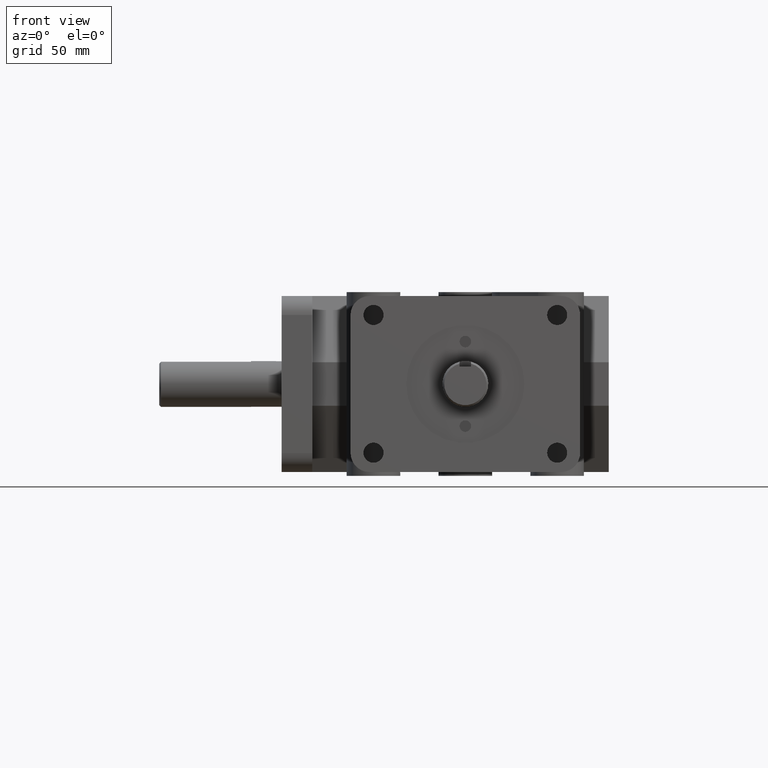
[diagram: clean part render]
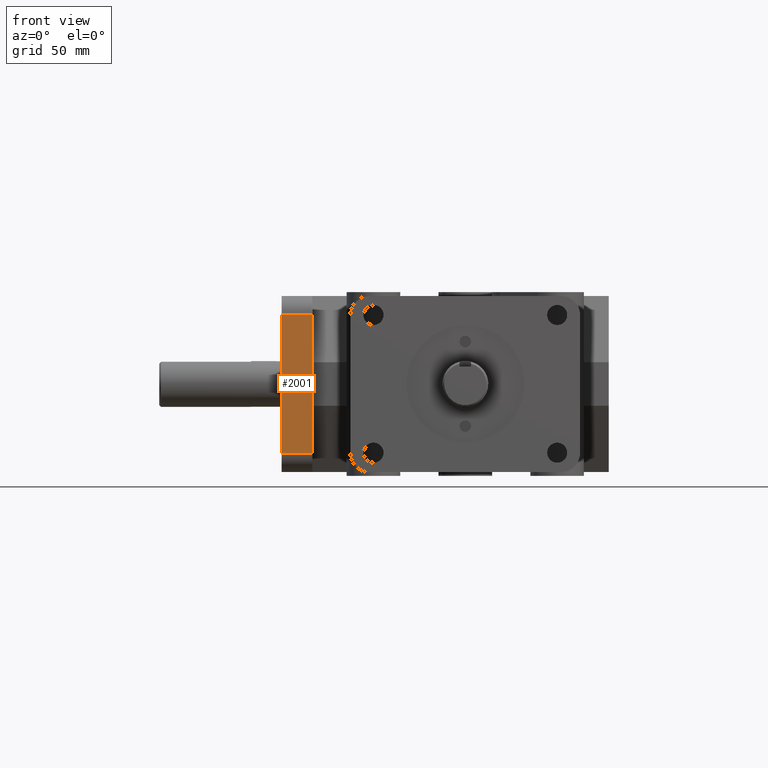
[diagram: same view with one face highlighted and labeled with its STEP entity id]
A machine part, front view. The second image highlights one B-rep face of the part: STEP entity #2001.
In plain terms, the highlighted planar face has unit normal (0, -1, 0).
Its self-contained STEP definition (entity closure, byte-faithful):
#25=LINE('',#2856,#216);
#32=LINE('',#2886,#223);
#50=LINE('',#2942,#241);
#199=LINE('',#3352,#390);
#216=VECTOR('',#2279,1.);
#223=VECTOR('',#2306,1.);
#241=VECTOR('',#2356,1.);
#390=VECTOR('',#2749,1.);
#564=FACE_OUTER_BOUND('',#707,.T.);
#707=EDGE_LOOP('',(#1761,#1762,#1763,#1764));
#829=VERTEX_POINT('',#2853);
#830=VERTEX_POINT('',#2855);
#840=VERTEX_POINT('',#2879);
#843=VERTEX_POINT('',#2884);
#1017=EDGE_CURVE('',#829,#830,#25,.T.);
#1031=EDGE_CURVE('',#843,#840,#32,.T.);
#1059=EDGE_CURVE('',#829,#840,#50,.T.);
#1259=EDGE_CURVE('',#830,#843,#199,.T.);
#1761=ORIENTED_EDGE('',*,*,#1017,.F.);
#1762=ORIENTED_EDGE('',*,*,#1059,.T.);
#1763=ORIENTED_EDGE('',*,*,#1031,.F.);
#1764=ORIENTED_EDGE('',*,*,#1259,.F.);
#1898=PLANE('',#2204);
#2001=ADVANCED_FACE('',(#564),#1898,.T.);
#2204=AXIS2_PLACEMENT_3D('',#3351,#2747,#2748);
#2279=DIRECTION('',(1.,0.,0.));
#2306=DIRECTION('',(-1.,0.,0.));
#2356=DIRECTION('',(0.,0.,-1.));
#2747=DIRECTION('center_axis',(0.,-1.,0.));
#2748=DIRECTION('ref_axis',(0.,0.,1.));
#2749=DIRECTION('',(0.,0.,-1.));
#2853=CARTESIAN_POINT('',(-3.,3.125,1.1275));
#2855=CARTESIAN_POINT('',(-2.5,3.125,1.1275));
#2856=CARTESIAN_POINT('',(-1.5,3.125,1.1275));
#2879=CARTESIAN_POINT('',(-3.,3.125,-1.1275));
#2884=CARTESIAN_POINT('',(-2.5,3.125,-1.1275));
#2886=CARTESIAN_POINT('',(-1.5,3.125,-1.1275));
#2942=CARTESIAN_POINT('',(-3.,3.125,0.));
#3351=CARTESIAN_POINT('Origin',(-3.,3.125,0.));
#3352=CARTESIAN_POINT('',(-2.5,3.125,0.));